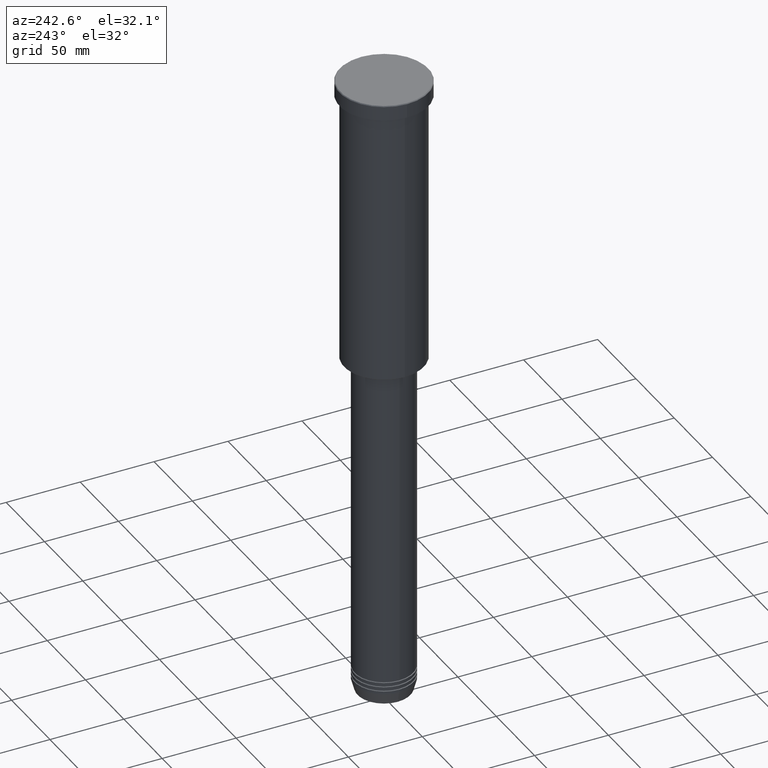
[diagram: clean part render]
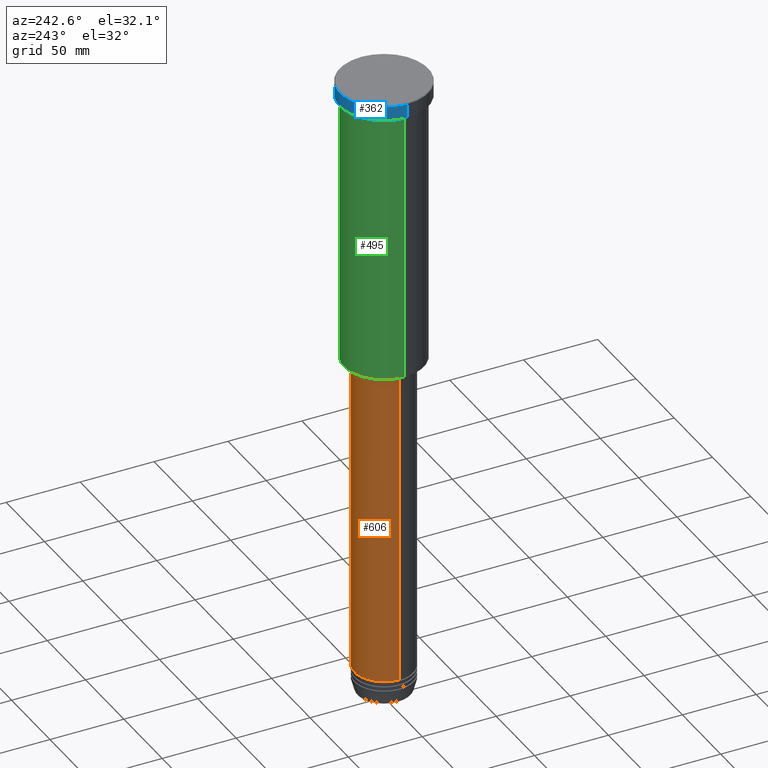
[diagram: same view with three faces highlighted in distinct colors, each labeled with its STEP entity id]
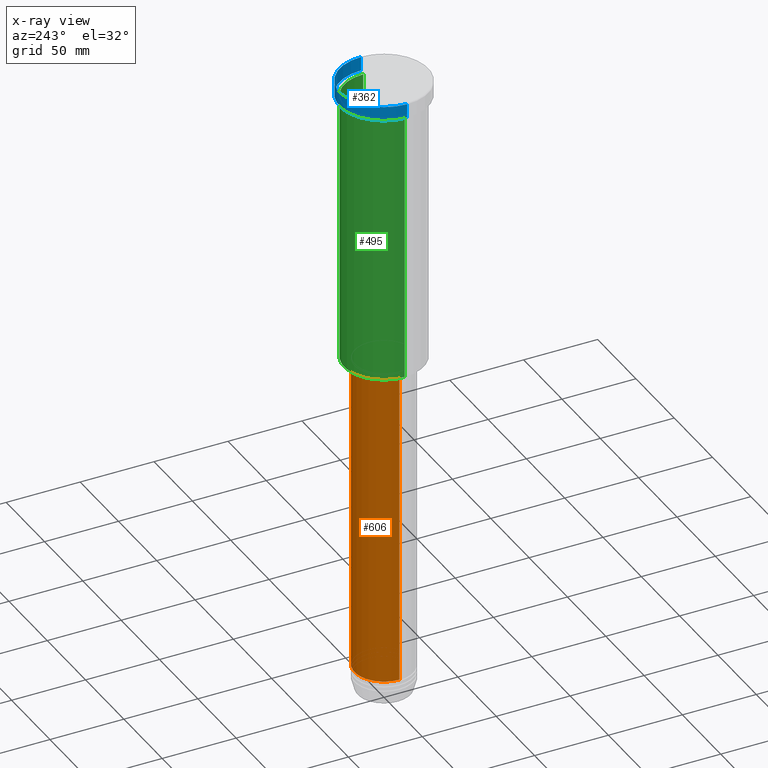
[diagram: x-ray of the same camera — body ghosted, the three highlighted faces saturated]
A machine part, auxiliary view with three faces highlighted in distinct colors.
The next image is the same camera in x-ray (body ghosted, the three faces saturated) — at least one of them is partly hidden behind the body in this view.
Their STEP definitions:

[orange] entity #606 — the highlighted cylindrical surface (edge-blend (fillet) strip) has radius 20 mm, axis along (-0, -0, 1).
#22 = VERTEX_POINT ( 'NONE', #973 ) ;
#46 = DIRECTION ( 'NONE',  ( -0.000000000000000000, -0.000000000000000000, 1.000000000000000000 ) ) ;
#183 = LINE ( 'NONE', #370, #1129 ) ;
#224 = ORIENTED_EDGE ( 'NONE', *, *, #1120, .F. ) ;
#229 = CYLINDRICAL_SURFACE ( 'NONE', #590, 20.00000000000000000 ) ;
#237 = CARTESIAN_POINT ( 'NONE',  ( -20.00000000000000000, 2.449293598294706513E-15, 0.000000000000000000 ) ) ;
#247 = ORIENTED_EDGE ( 'NONE', *, *, #802, .T. ) ;
#255 = CARTESIAN_POINT ( 'NONE',  ( -20.00000000000000000, 2.449293598294706513E-15, -414.0000000000000000 ) ) ;
#274 = CIRCLE ( 'NONE', #703, 20.00000000000000000 ) ;
#338 = EDGE_CURVE ( 'NONE', #780, #707, #896, .T. ) ;
#370 = CARTESIAN_POINT ( 'NONE',  ( 20.00000000000000000, 0.000000000000000000, 0.000000000000000000 ) ) ;
#444 = AXIS2_PLACEMENT_3D ( 'NONE', #609, #1155, #1051 ) ;
#462 = VERTEX_POINT ( 'NONE', #715 ) ;
#511 = DIRECTION ( 'NONE',  ( -0.000000000000000000, -0.000000000000000000, 1.000000000000000000 ) ) ;
#553 = DIRECTION ( 'NONE',  ( -0.000000000000000000, -0.000000000000000000, 1.000000000000000000 ) ) ;
#587 = FACE_OUTER_BOUND ( 'NONE', #980, .T. ) ;
#590 = AXIS2_PLACEMENT_3D ( 'NONE', #740, #46, #1124 ) ;
#606 = ADVANCED_FACE ( 'NONE', ( #587 ), #229, .T. ) ;
#609 = CARTESIAN_POINT ( 'NONE',  ( 0.000000000000000000, 0.000000000000000000, -414.0000000000000000 ) ) ;
#703 = AXIS2_PLACEMENT_3D ( 'NONE', #1001, #553, #908 ) ;
#707 = VERTEX_POINT ( 'NONE', #963 ) ;
#715 = CARTESIAN_POINT ( 'NONE',  ( 20.00000000000000000, 0.000000000000000000, -196.9999999999999147 ) ) ;
#733 = ORIENTED_EDGE ( 'NONE', *, *, #338, .T. ) ;
#740 = CARTESIAN_POINT ( 'NONE',  ( 0.000000000000000000, 0.000000000000000000, 0.000000000000000000 ) ) ;
#780 = VERTEX_POINT ( 'NONE', #255 ) ;
#802 = EDGE_CURVE ( 'NONE', #22, #780, #1022, .T. ) ;
#834 = EDGE_CURVE ( 'NONE', #22, #462, #183, .T. ) ;
#896 = LINE ( 'NONE', #237, #1069 ) ;
#908 = DIRECTION ( 'NONE',  ( 1.000000000000000000, 0.000000000000000000, 0.000000000000000000 ) ) ;
#963 = CARTESIAN_POINT ( 'NONE',  ( -20.00000000000000000, 2.449293598294706513E-15, -196.9999999999999147 ) ) ;
#973 = CARTESIAN_POINT ( 'NONE',  ( 20.00000000000000000, 0.000000000000000000, -414.0000000000000000 ) ) ;
#980 = EDGE_LOOP ( 'NONE', ( #247, #733, #224, #1121 ) ) ;
#1001 = CARTESIAN_POINT ( 'NONE',  ( 0.000000000000000000, 0.000000000000000000, -196.9999999999999147 ) ) ;
#1022 = CIRCLE ( 'NONE', #444, 20.00000000000000000 ) ;
#1051 = DIRECTION ( 'NONE',  ( 1.000000000000000000, 0.000000000000000000, 0.000000000000000000 ) ) ;
#1069 = VECTOR ( 'NONE', #511, 1000.000000000000000 ) ;
#1120 = EDGE_CURVE ( 'NONE', #462, #707, #274, .T. ) ;
#1121 = ORIENTED_EDGE ( 'NONE', *, *, #834, .F. ) ;
#1124 = DIRECTION ( 'NONE',  ( 1.000000000000000000, 0.000000000000000000, 0.000000000000000000 ) ) ;
#1129 = VECTOR ( 'NONE', #1182, 1000.000000000000000 ) ;
#1155 = DIRECTION ( 'NONE',  ( -0.000000000000000000, -0.000000000000000000, 1.000000000000000000 ) ) ;
#1182 = DIRECTION ( 'NONE',  ( -0.000000000000000000, -0.000000000000000000, 1.000000000000000000 ) ) ;

[blue] entity #362 — the highlighted cylindrical surface (partial cylindrical patch) has radius 30 mm, axis along (-0, -0, 1).
#12 = ORIENTED_EDGE ( 'NONE', *, *, #1033, .T. ) ;
#19 = VERTEX_POINT ( 'NONE', #322 ) ;
#48 = AXIS2_PLACEMENT_3D ( 'NONE', #148, #857, #431 ) ;
#68 = EDGE_LOOP ( 'NONE', ( #12, #279, #389, #1060 ) ) ;
#128 = VERTEX_POINT ( 'NONE', #130 ) ;
#130 = CARTESIAN_POINT ( 'NONE',  ( 30.00000000000000000, 0.000000000000000000, -0.5000000000000073275 ) ) ;
#148 = CARTESIAN_POINT ( 'NONE',  ( 0.000000000000000000, 0.000000000000000000, 0.000000000000000000 ) ) ;
#233 = DIRECTION ( 'NONE',  ( -0.000000000000000000, -0.000000000000000000, 1.000000000000000000 ) ) ;
#260 = VECTOR ( 'NONE', #1145, 1000.000000000000000 ) ;
#279 = ORIENTED_EDGE ( 'NONE', *, *, #581, .T. ) ;
#282 = CARTESIAN_POINT ( 'NONE',  ( -30.00000000000000000, 3.673940397442059178E-15, -9.999999999999992895 ) ) ;
#322 = CARTESIAN_POINT ( 'NONE',  ( 30.00000000000000000, 0.000000000000000000, -9.999999999999992895 ) ) ;
#362 = ADVANCED_FACE ( 'NONE', ( #990 ), #415, .T. ) ;
#389 = ORIENTED_EDGE ( 'NONE', *, *, #784, .T. ) ;
#415 = CYLINDRICAL_SURFACE ( 'NONE', #48, 30.00000000000000000 ) ;
#431 = DIRECTION ( 'NONE',  ( 1.000000000000000000, 0.000000000000000000, 0.000000000000000000 ) ) ;
#434 = CARTESIAN_POINT ( 'NONE',  ( 0.000000000000000000, 0.000000000000000000, -0.5000000000000073275 ) ) ;
#487 = VERTEX_POINT ( 'NONE', #282 ) ;
#523 = DIRECTION ( 'NONE',  ( 0.000000000000000000, 0.000000000000000000, -1.000000000000000000 ) ) ;
#574 = CARTESIAN_POINT ( 'NONE',  ( -30.00000000000000000, 3.673940397442059178E-15, 0.000000000000000000 ) ) ;
#581 = EDGE_CURVE ( 'NONE', #487, #726, #1049, .T. ) ;
#591 = AXIS2_PLACEMENT_3D ( 'NONE', #434, #523, #950 ) ;
#661 = CIRCLE ( 'NONE', #591, 30.00000000000000000 ) ;
#674 = LINE ( 'NONE', #762, #260 ) ;
#681 = AXIS2_PLACEMENT_3D ( 'NONE', #696, #1083, #1056 ) ;
#696 = CARTESIAN_POINT ( 'NONE',  ( 0.000000000000000000, 0.000000000000000000, -9.999999999999992895 ) ) ;
#716 = EDGE_CURVE ( 'NONE', #19, #128, #674, .T. ) ;
#726 = VERTEX_POINT ( 'NONE', #1075 ) ;
#762 = CARTESIAN_POINT ( 'NONE',  ( 30.00000000000000000, 0.000000000000000000, 0.000000000000000000 ) ) ;
#784 = EDGE_CURVE ( 'NONE', #726, #128, #661, .T. ) ;
#857 = DIRECTION ( 'NONE',  ( -0.000000000000000000, -0.000000000000000000, 1.000000000000000000 ) ) ;
#950 = DIRECTION ( 'NONE',  ( 1.000000000000000000, 0.000000000000000000, 0.000000000000000000 ) ) ;
#990 = FACE_OUTER_BOUND ( 'NONE', #68, .T. ) ;
#1020 = VECTOR ( 'NONE', #233, 1000.000000000000000 ) ;
#1033 = EDGE_CURVE ( 'NONE', #19, #487, #1153, .T. ) ;
#1049 = LINE ( 'NONE', #574, #1020 ) ;
#1056 = DIRECTION ( 'NONE',  ( 1.000000000000000000, 0.000000000000000000, 0.000000000000000000 ) ) ;
#1060 = ORIENTED_EDGE ( 'NONE', *, *, #716, .F. ) ;
#1075 = CARTESIAN_POINT ( 'NONE',  ( -30.00000000000000000, 3.673940397442059178E-15, -0.5000000000000073275 ) ) ;
#1083 = DIRECTION ( 'NONE',  ( -0.000000000000000000, -0.000000000000000000, 1.000000000000000000 ) ) ;
#1145 = DIRECTION ( 'NONE',  ( -0.000000000000000000, -0.000000000000000000, 1.000000000000000000 ) ) ;
#1153 = CIRCLE ( 'NONE', #681, 30.00000000000000000 ) ;

[green] entity #495 — the highlighted cylindrical surface (partial cylindrical patch) has radius 27 mm, axis along (-0, -0, 1).
#58 = VERTEX_POINT ( 'NONE', #524 ) ;
#79 = ORIENTED_EDGE ( 'NONE', *, *, #515, .T. ) ;
#111 = ORIENTED_EDGE ( 'NONE', *, *, #1034, .F. ) ;
#112 = CARTESIAN_POINT ( 'NONE',  ( 0.000000000000000000, 0.000000000000000000, -195.4999999999999716 ) ) ;
#134 = ORIENTED_EDGE ( 'NONE', *, *, #1067, .F. ) ;
#135 = DIRECTION ( 'NONE',  ( -0.000000000000000000, -0.000000000000000000, 1.000000000000000000 ) ) ;
#188 = LINE ( 'NONE', #1096, #1044 ) ;
#225 = CARTESIAN_POINT ( 'NONE',  ( 27.00000000000000355, 0.000000000000000000, 0.000000000000000000 ) ) ;
#284 = DIRECTION ( 'NONE',  ( -0.000000000000000000, -0.000000000000000000, 1.000000000000000000 ) ) ;
#298 = CARTESIAN_POINT ( 'NONE',  ( 0.000000000000000000, 0.000000000000000000, 0.000000000000000000 ) ) ;
#361 = VERTEX_POINT ( 'NONE', #1165 ) ;
#373 = CARTESIAN_POINT ( 'NONE',  ( 27.00000000000000355, 0.000000000000000000, -10.99999999999999289 ) ) ;
#458 = AXIS2_PLACEMENT_3D ( 'NONE', #1045, #687, #757 ) ;
#463 = DIRECTION ( 'NONE',  ( -0.000000000000000000, -0.000000000000000000, 1.000000000000000000 ) ) ;
#495 = ADVANCED_FACE ( 'NONE', ( #551 ), #1017, .T. ) ;
#515 = EDGE_CURVE ( 'NONE', #631, #58, #188, .T. ) ;
#524 = CARTESIAN_POINT ( 'NONE',  ( -27.00000000000000355, 3.306546357697854128E-15, -10.99999999999999289 ) ) ;
#531 = AXIS2_PLACEMENT_3D ( 'NONE', #298, #633, #906 ) ;
#535 = CIRCLE ( 'NONE', #1023, 27.00000000000000355 ) ;
#551 = FACE_OUTER_BOUND ( 'NONE', #842, .T. ) ;
#631 = VERTEX_POINT ( 'NONE', #941 ) ;
#633 = DIRECTION ( 'NONE',  ( -0.000000000000000000, -0.000000000000000000, 1.000000000000000000 ) ) ;
#687 = DIRECTION ( 'NONE',  ( -0.000000000000000000, -0.000000000000000000, 1.000000000000000000 ) ) ;
#753 = DIRECTION ( 'NONE',  ( -1.000000000000000000, 0.000000000000000000, 0.000000000000000000 ) ) ;
#757 = DIRECTION ( 'NONE',  ( 1.000000000000000000, 0.000000000000000000, 0.000000000000000000 ) ) ;
#842 = EDGE_LOOP ( 'NONE', ( #1038, #79, #111, #134 ) ) ;
#863 = VERTEX_POINT ( 'NONE', #373 ) ;
#893 = LINE ( 'NONE', #225, #1130 ) ;
#906 = DIRECTION ( 'NONE',  ( 1.000000000000000000, 0.000000000000000000, 0.000000000000000000 ) ) ;
#922 = CIRCLE ( 'NONE', #458, 27.00000000000000355 ) ;
#941 = CARTESIAN_POINT ( 'NONE',  ( -27.00000000000000355, 3.306546357697854128E-15, -195.4999999999999716 ) ) ;
#1017 = CYLINDRICAL_SURFACE ( 'NONE', #531, 27.00000000000000355 ) ;
#1023 = AXIS2_PLACEMENT_3D ( 'NONE', #112, #135, #753 ) ;
#1034 = EDGE_CURVE ( 'NONE', #863, #58, #922, .T. ) ;
#1038 = ORIENTED_EDGE ( 'NONE', *, *, #1144, .T. ) ;
#1044 = VECTOR ( 'NONE', #284, 1000.000000000000000 ) ;
#1045 = CARTESIAN_POINT ( 'NONE',  ( 0.000000000000000000, 0.000000000000000000, -10.99999999999999289 ) ) ;
#1067 = EDGE_CURVE ( 'NONE', #361, #863, #893, .T. ) ;
#1096 = CARTESIAN_POINT ( 'NONE',  ( -27.00000000000000355, 3.306546357697854128E-15, 0.000000000000000000 ) ) ;
#1130 = VECTOR ( 'NONE', #463, 1000.000000000000000 ) ;
#1144 = EDGE_CURVE ( 'NONE', #361, #631, #535, .T. ) ;
#1165 = CARTESIAN_POINT ( 'NONE',  ( 27.00000000000000355, 0.000000000000000000, -195.4999999999999716 ) ) ;